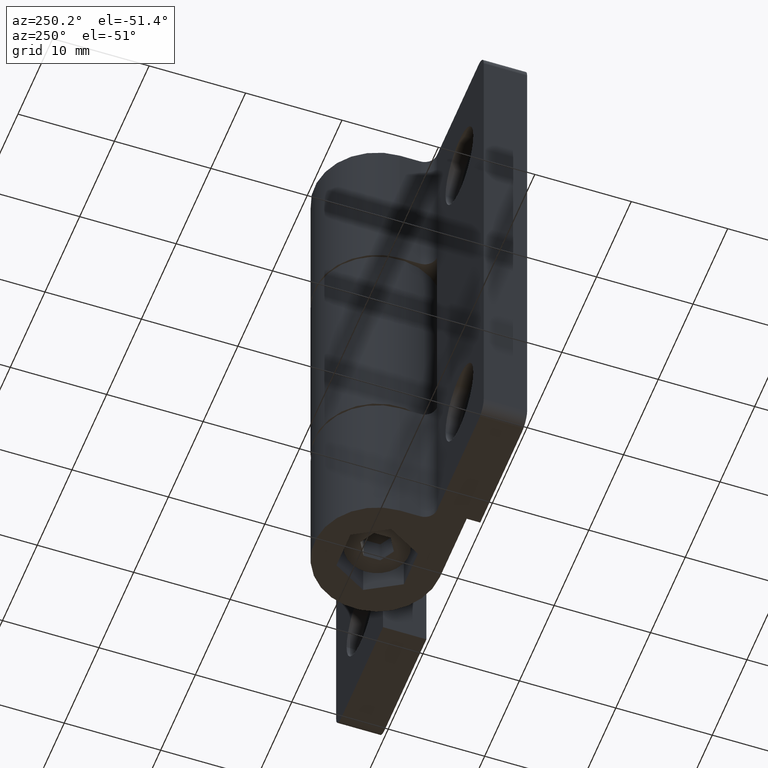
[diagram: clean part render]
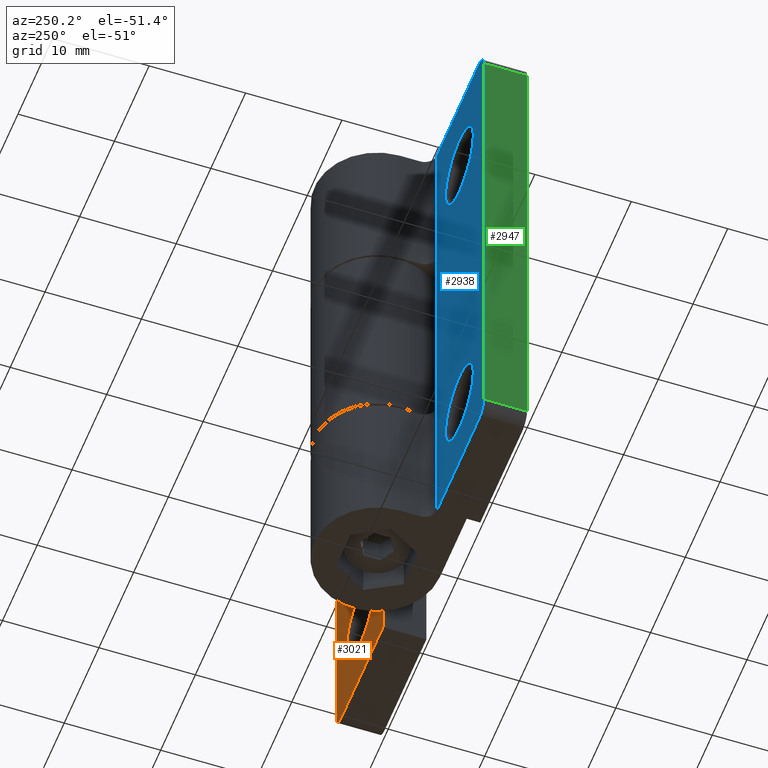
[diagram: same view with three faces highlighted in distinct colors, each labeled with its STEP entity id]
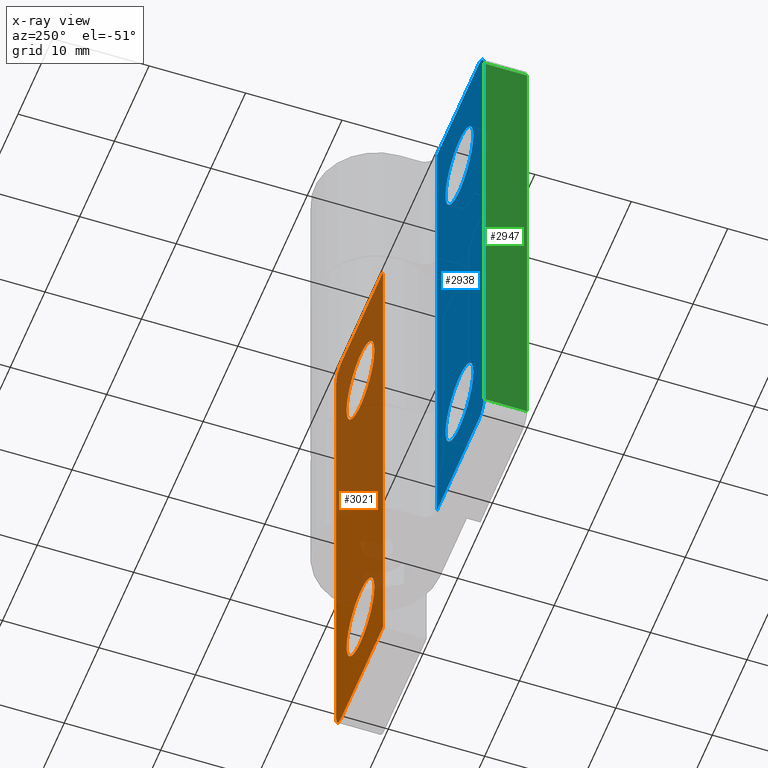
[diagram: x-ray of the same camera — body ghosted, the three highlighted faces saturated]
A machine part, auxiliary view with three faces highlighted in distinct colors.
The next image is the same camera in x-ray (body ghosted, the three faces saturated) — at least one of them is partly hidden behind the body in this view.
Their STEP definitions:

[orange] entity #3021 — the highlighted planar face has unit normal (0, 1, 0).
#338=FACE_BOUND('',#641,.T.);
#339=FACE_BOUND('',#642,.T.);
#405=PLANE('',#3185);
#503=FACE_OUTER_BOUND('',#640,.T.);
#640=EDGE_LOOP('',(#2787,#2788,#2789,#2790,#2791,#2792,#2793,#2794));
#641=EDGE_LOOP('',(#2795));
#642=EDGE_LOOP('',(#2796));
#789=LINE('',#35920,#941);
#797=LINE('',#35945,#949);
#798=LINE('',#35947,#950);
#799=LINE('',#35951,#951);
#800=LINE('',#35955,#952);
#801=LINE('',#35956,#953);
#941=VECTOR('',#3601,23.);
#949=VECTOR('',#3625,16.25);
#950=VECTOR('',#3626,12.);
#951=VECTOR('',#3629,52.5);
#952=VECTOR('',#3632,12.);
#953=VECTOR('',#3633,16.25);
#1034=CIRCLE('',#3186,1.5);
#1035=CIRCLE('',#3187,1.5);
#1036=CIRCLE('',#3188,4.);
#1037=CIRCLE('',#3189,4.);
#1409=VERTEX_POINT('',#35913);
#1412=VERTEX_POINT('',#35918);
#1421=VERTEX_POINT('',#35944);
#1422=VERTEX_POINT('',#35946);
#1423=VERTEX_POINT('',#35948);
#1424=VERTEX_POINT('',#35950);
#1425=VERTEX_POINT('',#35952);
#1426=VERTEX_POINT('',#35954);
#1427=VERTEX_POINT('',#35957);
#1428=VERTEX_POINT('',#35959);
#1874=EDGE_CURVE('',#1412,#1409,#789,.T.);
#1886=EDGE_CURVE('',#1412,#1421,#797,.T.);
#1887=EDGE_CURVE('',#1422,#1421,#798,.T.);
#1888=EDGE_CURVE('',#1423,#1422,#1034,.T.);
#1889=EDGE_CURVE('',#1424,#1423,#799,.T.);
#1890=EDGE_CURVE('',#1425,#1424,#1035,.T.);
#1891=EDGE_CURVE('',#1426,#1425,#800,.T.);
#1892=EDGE_CURVE('',#1426,#1409,#801,.T.);
#1893=EDGE_CURVE('',#1427,#1427,#1036,.T.);
#1894=EDGE_CURVE('',#1428,#1428,#1037,.T.);
#2787=ORIENTED_EDGE('',*,*,#1874,.F.);
#2788=ORIENTED_EDGE('',*,*,#1886,.T.);
#2789=ORIENTED_EDGE('',*,*,#1887,.F.);
#2790=ORIENTED_EDGE('',*,*,#1888,.F.);
#2791=ORIENTED_EDGE('',*,*,#1889,.F.);
#2792=ORIENTED_EDGE('',*,*,#1890,.F.);
#2793=ORIENTED_EDGE('',*,*,#1891,.F.);
#2794=ORIENTED_EDGE('',*,*,#1892,.T.);
#2795=ORIENTED_EDGE('',*,*,#1893,.T.);
#2796=ORIENTED_EDGE('',*,*,#1894,.T.);
#3021=ADVANCED_FACE('',(#503,#338,#339),#405,.T.);
#3185=AXIS2_PLACEMENT_3D('',#35943,#3623,#3624);
#3186=AXIS2_PLACEMENT_3D('',#35949,#3627,#3628);
#3187=AXIS2_PLACEMENT_3D('',#35953,#3630,#3631);
#3188=AXIS2_PLACEMENT_3D('',#35958,#3634,#3635);
#3189=AXIS2_PLACEMENT_3D('',#35960,#3636,#3637);
#3601=DIRECTION('',(0.,-1.,0.));
#3623=DIRECTION('center_axis',(0.,0.,1.));
#3624=DIRECTION('ref_axis',(1.,0.,0.));
#3625=DIRECTION('',(-3.00993972588315E-66,1.,0.));
#3626=DIRECTION('',(1.,0.,0.));
#3627=DIRECTION('center_axis',(0.,0.,-1.));
#3628=DIRECTION('ref_axis',(-0.707106781186549,0.707106781186546,0.));
#3629=DIRECTION('',(0.,1.,0.));
#3630=DIRECTION('center_axis',(0.,0.,-1.));
#3631=DIRECTION('ref_axis',(-0.707106781186549,-0.707106781186546,0.));
#3632=DIRECTION('',(-1.,0.,0.));
#3633=DIRECTION('',(-3.00993972588315E-66,1.,0.));
#3634=DIRECTION('center_axis',(0.,0.,-1.));
#3635=DIRECTION('ref_axis',(1.,0.,0.));
#3636=DIRECTION('center_axis',(0.,0.,-1.));
#3637=DIRECTION('ref_axis',(1.,0.,0.));
#35913=CARTESIAN_POINT('',(64.0258813901587,-11.5,4.5));
#35918=CARTESIAN_POINT('',(64.0258813901587,11.5,4.5));
#35920=CARTESIAN_POINT('',(64.0258813901587,0.,4.5));
#35943=CARTESIAN_POINT('Origin',(50.5258813901587,0.,4.5));
#35944=CARTESIAN_POINT('',(64.0258813901587,27.75,4.5));
#35945=CARTESIAN_POINT('',(64.0258813901587,13.875,4.5));
#35946=CARTESIAN_POINT('',(52.0258813901587,27.75,4.5));
#35947=CARTESIAN_POINT('',(65.2758813901587,27.75,4.5));
#35948=CARTESIAN_POINT('',(50.5258813901587,26.25,4.5));
#35949=CARTESIAN_POINT('Origin',(52.0258813901587,26.25,4.5));
#35950=CARTESIAN_POINT('',(50.5258813901587,-26.25,4.5));
#35951=CARTESIAN_POINT('',(50.5258813901587,0.,4.5));
#35952=CARTESIAN_POINT('',(52.0258813901587,-27.75,4.5));
#35953=CARTESIAN_POINT('Origin',(52.0258813901587,-26.25,4.5));
#35954=CARTESIAN_POINT('',(64.0258813901587,-27.75,4.5));
#35955=CARTESIAN_POINT('',(65.2758813901587,-27.75,4.5));
#35956=CARTESIAN_POINT('',(64.0258813901587,-5.75,4.5));
#35957=CARTESIAN_POINT('',(53.5258813901434,-18.5,4.5));
#35958=CARTESIAN_POINT('Origin',(57.5258813901435,-18.5,4.5));
#35959=CARTESIAN_POINT('',(53.5258813901434,18.5,4.5));
#35960=CARTESIAN_POINT('Origin',(57.5258813901435,18.5,4.5));

[blue] entity #2938 — the highlighted planar face has unit normal (0, 1, 0).
#311=FACE_BOUND('',#531,.T.);
#312=FACE_BOUND('',#532,.T.);
#350=PLANE('',#3055);
#420=FACE_OUTER_BOUND('',#530,.T.);
#530=EDGE_LOOP('',(#1943,#1944,#1945,#1946,#1947,#1948,#1949,#1950));
#531=EDGE_LOOP('',(#1951));
#532=EDGE_LOOP('',(#1952));
#678=LINE('',#3764,#830);
#680=LINE('',#3770,#832);
#681=LINE('',#3772,#833);
#682=LINE('',#3774,#834);
#683=LINE('',#3778,#835);
#684=LINE('',#3781,#836);
#830=VECTOR('',#3242,16.);
#832=VECTOR('',#3248,23.5);
#833=VECTOR('',#3249,16.);
#834=VECTOR('',#3250,12.);
#835=VECTOR('',#3253,52.5);
#836=VECTOR('',#3256,12.);
#984=CIRCLE('',#3056,1.5);
#985=CIRCLE('',#3057,1.5);
#986=CIRCLE('',#3058,4.);
#987=CIRCLE('',#3059,4.);
#1055=VERTEX_POINT('',#3761);
#1056=VERTEX_POINT('',#3763);
#1058=VERTEX_POINT('',#3769);
#1059=VERTEX_POINT('',#3771);
#1060=VERTEX_POINT('',#3773);
#1061=VERTEX_POINT('',#3775);
#1062=VERTEX_POINT('',#3777);
#1063=VERTEX_POINT('',#3779);
#1064=VERTEX_POINT('',#3782);
#1065=VERTEX_POINT('',#3784);
#1458=EDGE_CURVE('',#1055,#1056,#678,.T.);
#1461=EDGE_CURVE('',#1055,#1058,#680,.T.);
#1462=EDGE_CURVE('',#1059,#1058,#681,.T.);
#1463=EDGE_CURVE('',#1060,#1059,#682,.T.);
#1464=EDGE_CURVE('',#1061,#1060,#984,.T.);
#1465=EDGE_CURVE('',#1062,#1061,#683,.T.);
#1466=EDGE_CURVE('',#1063,#1062,#985,.T.);
#1467=EDGE_CURVE('',#1056,#1063,#684,.T.);
#1468=EDGE_CURVE('',#1064,#1064,#986,.T.);
#1469=EDGE_CURVE('',#1065,#1065,#987,.T.);
#1943=ORIENTED_EDGE('',*,*,#1458,.F.);
#1944=ORIENTED_EDGE('',*,*,#1461,.T.);
#1945=ORIENTED_EDGE('',*,*,#1462,.F.);
#1946=ORIENTED_EDGE('',*,*,#1463,.F.);
#1947=ORIENTED_EDGE('',*,*,#1464,.F.);
#1948=ORIENTED_EDGE('',*,*,#1465,.F.);
#1949=ORIENTED_EDGE('',*,*,#1466,.F.);
#1950=ORIENTED_EDGE('',*,*,#1467,.F.);
#1951=ORIENTED_EDGE('',*,*,#1468,.T.);
#1952=ORIENTED_EDGE('',*,*,#1469,.T.);
#2938=ADVANCED_FACE('',(#420,#311,#312),#350,.T.);
#3055=AXIS2_PLACEMENT_3D('',#3768,#3246,#3247);
#3056=AXIS2_PLACEMENT_3D('',#3776,#3251,#3252);
#3057=AXIS2_PLACEMENT_3D('',#3780,#3254,#3255);
#3058=AXIS2_PLACEMENT_3D('',#3783,#3257,#3258);
#3059=AXIS2_PLACEMENT_3D('',#3785,#3259,#3260);
#3242=DIRECTION('',(0.,-1.,0.));
#3246=DIRECTION('center_axis',(0.,0.,1.));
#3247=DIRECTION('ref_axis',(1.,0.,0.));
#3248=DIRECTION('',(0.,1.,0.));
#3249=DIRECTION('',(0.,-1.,0.));
#3250=DIRECTION('',(1.,0.,0.));
#3251=DIRECTION('center_axis',(0.,0.,-1.));
#3252=DIRECTION('ref_axis',(-0.707106781186549,0.707106781186546,0.));
#3253=DIRECTION('',(0.,1.,0.));
#3254=DIRECTION('center_axis',(0.,0.,-1.));
#3255=DIRECTION('ref_axis',(-0.707106781186549,-0.707106781186546,0.));
#3256=DIRECTION('',(-1.,0.,0.));
#3257=DIRECTION('center_axis',(0.,0.,-1.));
#3258=DIRECTION('ref_axis',(1.,0.,0.));
#3259=DIRECTION('center_axis',(0.,0.,-1.));
#3260=DIRECTION('ref_axis',(1.,0.,0.));
#3761=CARTESIAN_POINT('',(13.5,-11.75,4.5));
#3763=CARTESIAN_POINT('',(13.5,-27.75,4.5));
#3764=CARTESIAN_POINT('',(13.5,0.,4.5));
#3768=CARTESIAN_POINT('Origin',(-4.44089209850063E-15,0.,4.5));
#3769=CARTESIAN_POINT('',(13.5,11.75,4.5));
#3770=CARTESIAN_POINT('',(13.5,5.875,4.5));
#3771=CARTESIAN_POINT('',(13.5,27.75,4.5));
#3772=CARTESIAN_POINT('',(13.5,0.,4.5));
#3773=CARTESIAN_POINT('',(1.49999999999999,27.75,4.5));
#3774=CARTESIAN_POINT('',(14.75,27.75,4.5));
#3775=CARTESIAN_POINT('',(-5.01654819963557E-15,26.25,4.5));
#3776=CARTESIAN_POINT('Origin',(1.49999999999999,26.25,4.5));
#3777=CARTESIAN_POINT('',(-5.01654819963557E-15,-26.25,4.5));
#3778=CARTESIAN_POINT('',(-5.01654819963557E-15,0.,4.5));
#3779=CARTESIAN_POINT('',(1.49999999999999,-27.75,4.5));
#3780=CARTESIAN_POINT('Origin',(1.49999999999999,-26.25,4.5));
#3781=CARTESIAN_POINT('',(14.75,-27.75,4.5));
#3782=CARTESIAN_POINT('',(2.99999999998473,18.5,4.5));
#3783=CARTESIAN_POINT('Origin',(6.99999999998473,18.5,4.5));
#3784=CARTESIAN_POINT('',(2.99999999998473,-18.5,4.5));
#3785=CARTESIAN_POINT('Origin',(6.99999999998473,-18.5,4.5));

[green] entity #2947 — the highlighted planar face has unit normal (-1, -0, -0).
#355=PLANE('',#3077);
#429=FACE_OUTER_BOUND('',#544,.T.);
#544=EDGE_LOOP('',(#1987,#1988,#1989,#1990));
#683=LINE('',#3778,#835);
#698=LINE('',#3832,#850);
#699=LINE('',#3835,#851);
#700=LINE('',#3836,#852);
#835=VECTOR('',#3253,52.5);
#850=VECTOR('',#3308,4.5);
#851=VECTOR('',#3311,4.5);
#852=VECTOR('',#3312,52.5);
#1061=VERTEX_POINT('',#3775);
#1062=VERTEX_POINT('',#3777);
#1080=VERTEX_POINT('',#3828);
#1082=VERTEX_POINT('',#3834);
#1465=EDGE_CURVE('',#1062,#1061,#683,.T.);
#1492=EDGE_CURVE('',#1062,#1080,#698,.T.);
#1493=EDGE_CURVE('',#1082,#1061,#699,.T.);
#1494=EDGE_CURVE('',#1080,#1082,#700,.T.);
#1987=ORIENTED_EDGE('',*,*,#1492,.F.);
#1988=ORIENTED_EDGE('',*,*,#1465,.T.);
#1989=ORIENTED_EDGE('',*,*,#1493,.F.);
#1990=ORIENTED_EDGE('',*,*,#1494,.F.);
#2947=ADVANCED_FACE('',(#429),#355,.T.);
#3077=AXIS2_PLACEMENT_3D('',#3833,#3309,#3310);
#3253=DIRECTION('',(0.,1.,0.));
#3308=DIRECTION('',(1.11478848880791E-15,0.,-1.));
#3309=DIRECTION('center_axis',(-1.,0.,-1.11478848880791E-15));
#3310=DIRECTION('ref_axis',(-1.11478848880791E-15,0.,1.));
#3311=DIRECTION('',(-1.11478848880791E-15,0.,1.));
#3312=DIRECTION('',(0.,1.,0.));
#3775=CARTESIAN_POINT('',(-5.01654819963557E-15,26.25,4.5));
#3777=CARTESIAN_POINT('',(-5.01654819963557E-15,-26.25,4.5));
#3778=CARTESIAN_POINT('',(-5.01654819963557E-15,0.,4.5));
#3828=CARTESIAN_POINT('',(0.,-26.25,0.));
#3832=CARTESIAN_POINT('',(-3.88578058618805E-15,-26.25,3.59999999999999));
#3833=CARTESIAN_POINT('Origin',(0.,0.,0.));
#3834=CARTESIAN_POINT('',(0.,26.25,0.));
#3835=CARTESIAN_POINT('',(-3.88578058618805E-15,26.25,3.59999999999999));
#3836=CARTESIAN_POINT('',(0.,0.,0.));